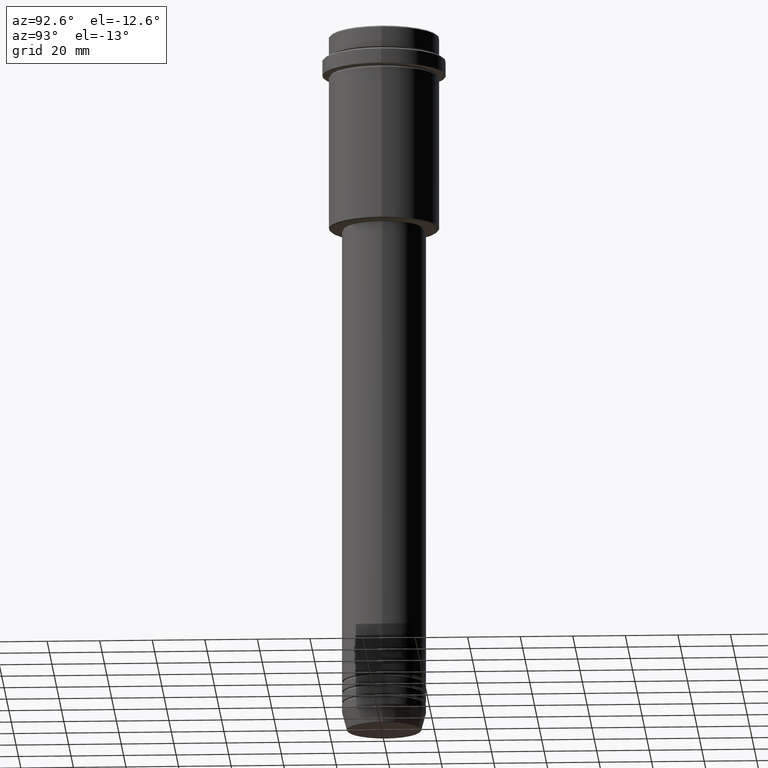
[diagram: clean part render]
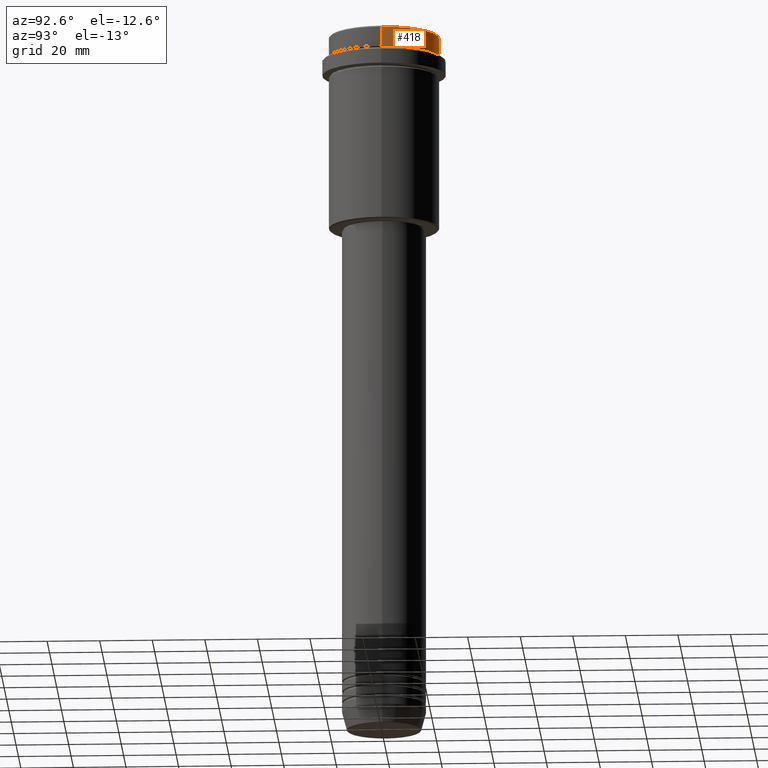
[diagram: same view with one face highlighted and labeled with its STEP entity id]
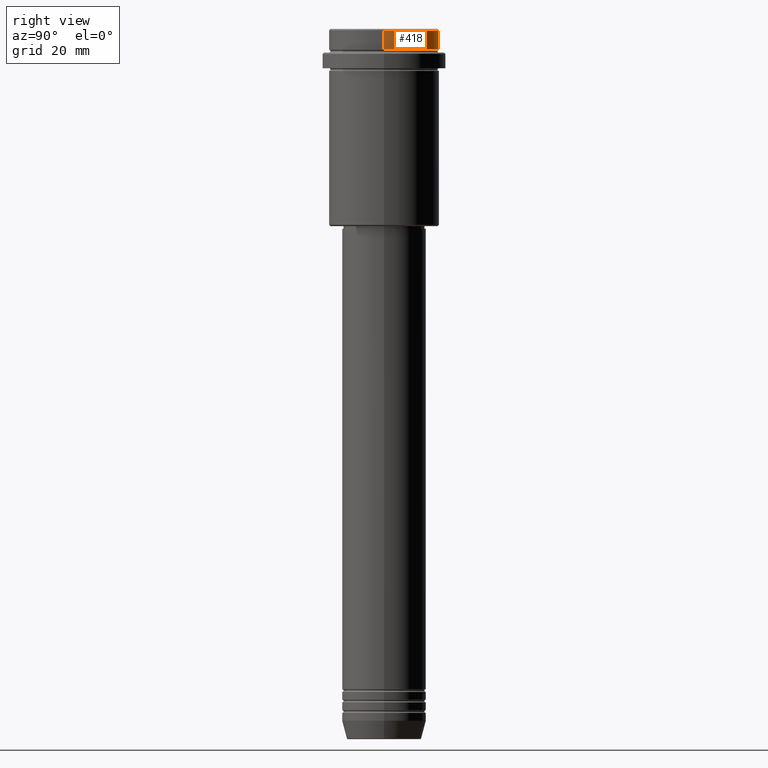
[diagram: same view with one face highlighted and labeled with its STEP entity id]
A machine part, auxiliary view. The second image highlights one B-rep face of the part: STEP entity #418.
A second angle (right view) of the same face is appended — the face is thin or edge-on in the first view.
In plain terms, the highlighted cylindrical surface (partial cylindrical patch) has radius 21 mm, axis along (-0, -0, 1).
Its self-contained STEP definition (entity closure, byte-faithful):
#41 = DIRECTION ( 'NONE',  ( -0.000000000000000000, -0.000000000000000000, 1.000000000000000000 ) ) ;
#70 = AXIS2_PLACEMENT_3D ( 'NONE', #473, #787, #683 ) ;
#87 = CARTESIAN_POINT ( 'NONE',  ( 0.000000000000000000, 0.000000000000000000, 0.000000000000000000 ) ) ;
#131 = DIRECTION ( 'NONE',  ( -0.000000000000000000, -0.000000000000000000, 1.000000000000000000 ) ) ;
#154 = VERTEX_POINT ( 'NONE', #667 ) ;
#181 = VERTEX_POINT ( 'NONE', #676 ) ;
#191 = DIRECTION ( 'NONE',  ( 1.000000000000000000, 0.000000000000000000, 0.000000000000000000 ) ) ;
#202 = VERTEX_POINT ( 'NONE', #1011 ) ;
#233 = AXIS2_PLACEMENT_3D ( 'NONE', #626, #1416, #191 ) ;
#237 = LINE ( 'NONE', #664, #1355 ) ;
#280 = VERTEX_POINT ( 'NONE', #1272 ) ;
#307 = DIRECTION ( 'NONE',  ( 1.000000000000000000, 0.000000000000000000, 0.000000000000000000 ) ) ;
#366 = CARTESIAN_POINT ( 'NONE',  ( -20.99999999999999645, 2.571758278209441267E-15, 0.000000000000000000 ) ) ;
#418 = ADVANCED_FACE ( 'NONE', ( #844 ), #1077, .T. ) ;
#473 = CARTESIAN_POINT ( 'NONE',  ( 0.000000000000000000, 0.000000000000000000, -0.5000000000000905942 ) ) ;
#516 = EDGE_CURVE ( 'NONE', #202, #154, #1004, .T. ) ;
#543 = LINE ( 'NONE', #366, #798 ) ;
#550 = ORIENTED_EDGE ( 'NONE', *, *, #1067, .T. ) ;
#592 = AXIS2_PLACEMENT_3D ( 'NONE', #87, #1296, #307 ) ;
#626 = CARTESIAN_POINT ( 'NONE',  ( 0.000000000000000000, 0.000000000000000000, -7.999999999999998224 ) ) ;
#664 = CARTESIAN_POINT ( 'NONE',  ( 20.99999999999999645, 0.000000000000000000, 0.000000000000000000 ) ) ;
#667 = CARTESIAN_POINT ( 'NONE',  ( 20.99999999999999645, 0.000000000000000000, -0.5000000000000905942 ) ) ;
#676 = CARTESIAN_POINT ( 'NONE',  ( -20.99999999999999645, 2.571758278209441267E-15, -7.999999999999998224 ) ) ;
#683 = DIRECTION ( 'NONE',  ( 1.000000000000000000, 0.000000000000000000, 0.000000000000000000 ) ) ;
#731 = ORIENTED_EDGE ( 'NONE', *, *, #516, .T. ) ;
#787 = DIRECTION ( 'NONE',  ( 0.000000000000000000, 0.000000000000000000, -1.000000000000000000 ) ) ;
#798 = VECTOR ( 'NONE', #41, 1000.000000000000000 ) ;
#844 = FACE_OUTER_BOUND ( 'NONE', #1200, .T. ) ;
#873 = EDGE_CURVE ( 'NONE', #280, #181, #957, .T. ) ;
#957 = CIRCLE ( 'NONE', #233, 20.99999999999999645 ) ;
#1004 = CIRCLE ( 'NONE', #70, 20.99999999999999645 ) ;
#1011 = CARTESIAN_POINT ( 'NONE',  ( -20.99999999999999645, 2.571758278209441267E-15, -0.5000000000000905942 ) ) ;
#1057 = EDGE_CURVE ( 'NONE', #280, #154, #237, .T. ) ;
#1067 = EDGE_CURVE ( 'NONE', #181, #202, #543, .T. ) ;
#1077 = CYLINDRICAL_SURFACE ( 'NONE', #592, 20.99999999999999645 ) ;
#1200 = EDGE_LOOP ( 'NONE', ( #1282, #550, #731, #1364 ) ) ;
#1272 = CARTESIAN_POINT ( 'NONE',  ( 20.99999999999999645, 0.000000000000000000, -7.999999999999998224 ) ) ;
#1282 = ORIENTED_EDGE ( 'NONE', *, *, #873, .T. ) ;
#1296 = DIRECTION ( 'NONE',  ( -0.000000000000000000, -0.000000000000000000, 1.000000000000000000 ) ) ;
#1355 = VECTOR ( 'NONE', #131, 1000.000000000000000 ) ;
#1364 = ORIENTED_EDGE ( 'NONE', *, *, #1057, .F. ) ;
#1416 = DIRECTION ( 'NONE',  ( -0.000000000000000000, -0.000000000000000000, 1.000000000000000000 ) ) ;